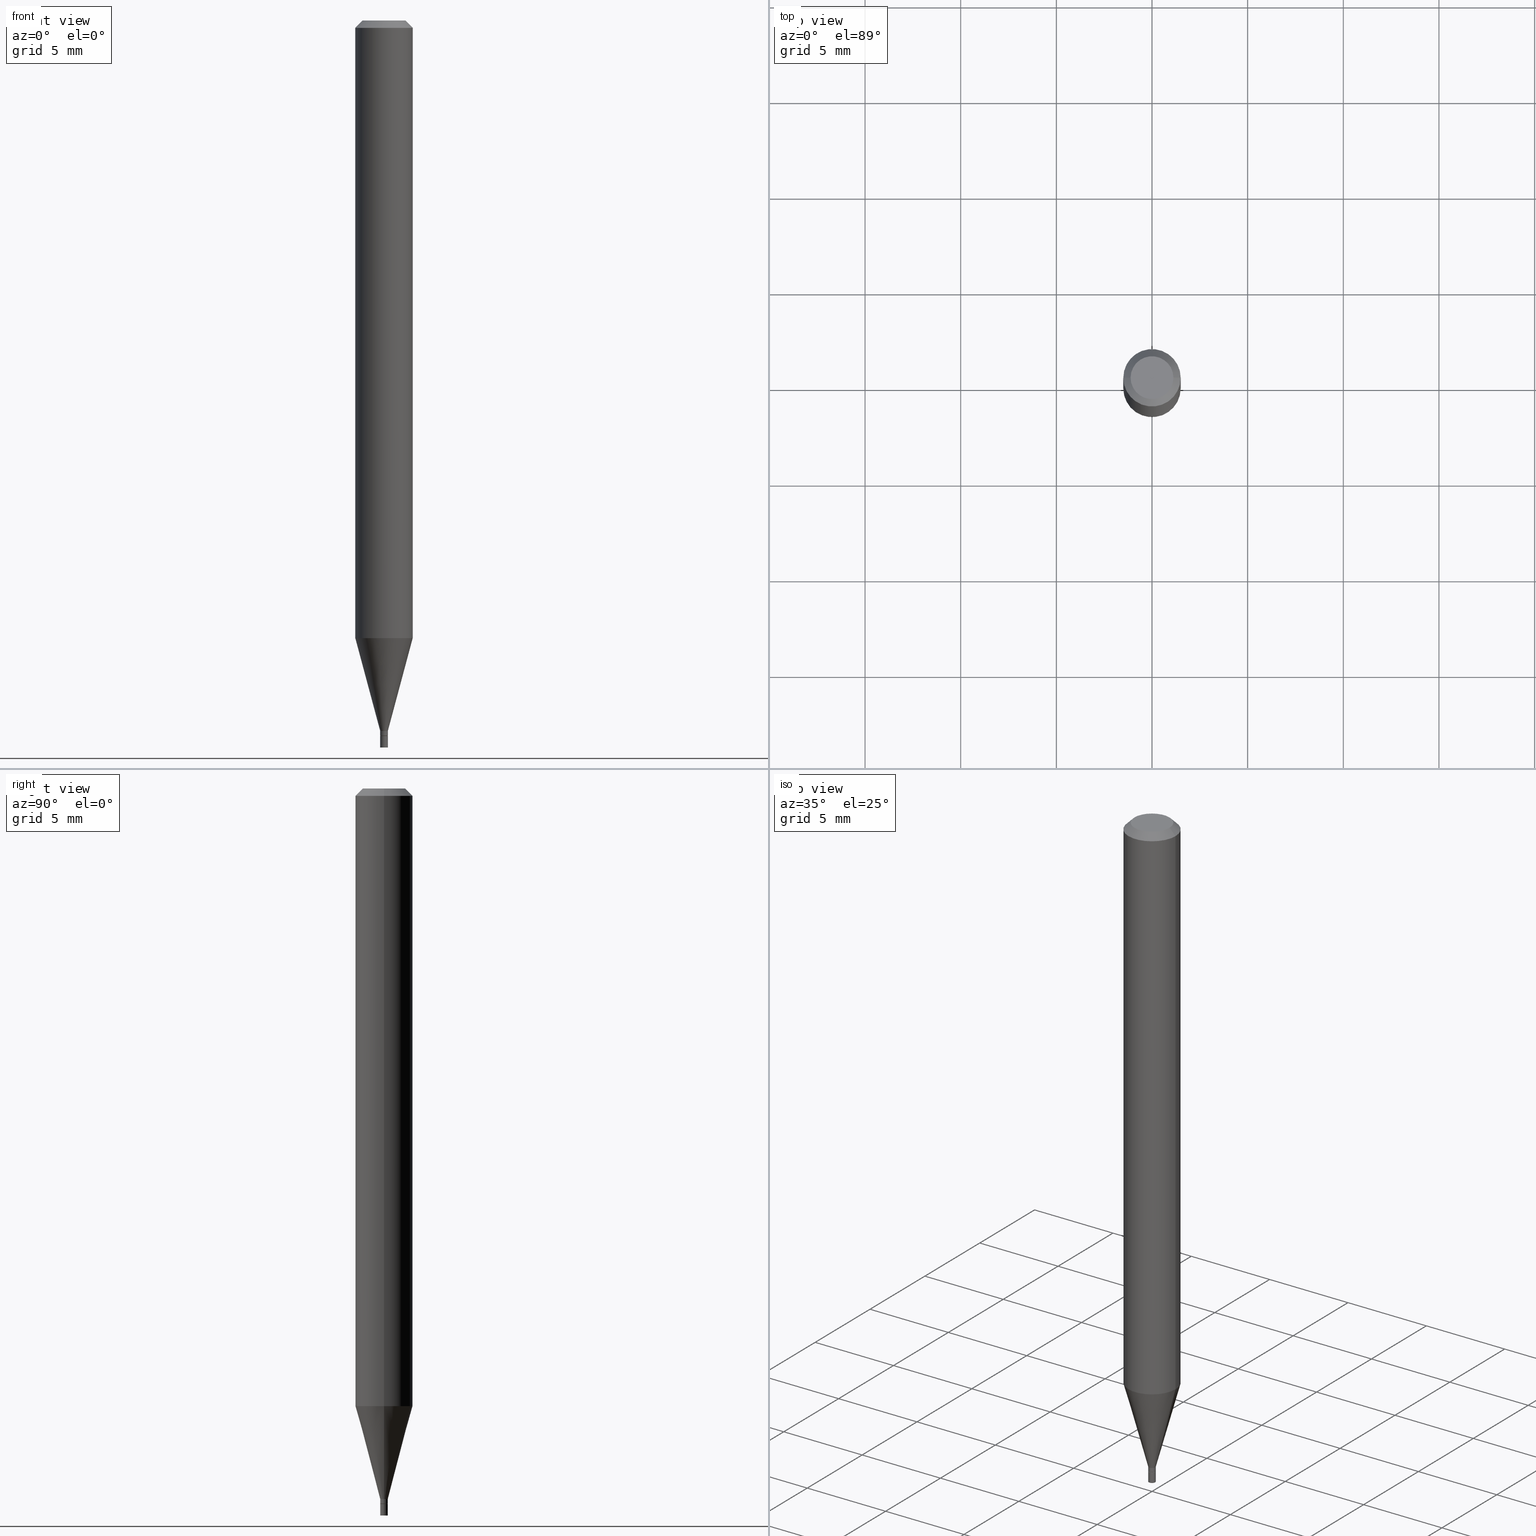
[diagram: canonical four-view strip — front | top / right | iso, engineering-drawing reading convention]
A machine part, canonical four-view strip (front | top / right | iso — engineering-drawing reading convention). The complete STEP part file that produces these views, byte-faithful:
ISO-10303-21;
HEADER;
FILE_DESCRIPTION (( 'STEP AP203' ),
    '1' );
FILE_NAME ('01803.STEP',
    '2024-03-20T01:24:29',
    ( '' ),
    ( '' ),
    'SwSTEP 2.0',
    'SolidWorks 2023',
    '' );
FILE_SCHEMA (( 'CONFIG_CONTROL_DESIGN' ));
ENDSEC;

DATA;
#1 = PLANE ( 'NONE',  #337 ) ;
#2 = ORIENTED_EDGE ( 'NONE', *, *, #420, .F. ) ;
#3 = AXIS2_PLACEMENT_3D ( 'NONE', #253, #224, #361 ) ;
#4 = CIRCLE ( 'NONE', #458, 0.05904999999999999832 ) ;
#5 = PERSON_AND_ORGANIZATION ( #349, #80 ) ;
#6 = EDGE_LOOP ( 'NONE', ( #176, #184, #239, #320 ) ) ;
#7 = PERSON_AND_ORGANIZATION ( #349, #80 ) ;
#8 = APPROVAL_ROLE ( '' ) ;
#9 = ADVANCED_FACE ( 'NONE', ( #267 ), #412, .T. ) ;
#10 = ORIENTED_EDGE ( 'NONE', *, *, #330, .F. ) ;
#11 = CARTESIAN_POINT ( 'NONE',  ( 3.075995059520799729E-16, 0.04404999999999999888, 7.721735782992738734E-17 ) ) ;
#12 = FACE_OUTER_BOUND ( 'NONE', #6, .T. ) ;
#13 = CALENDAR_DATE ( 2024, 19, 3 ) ;
#14 = CARTESIAN_POINT ( 'NONE',  ( 0.05904999999999998445, -4.850083061227587038E-15, -1.271018998652473808 ) ) ;
#15 = CARTESIAN_POINT ( 'NONE',  ( 3.600952817107613145E-29, -5.141206271446531536E-15, -1.472499999999999920 ) ) ;
#16 = ORIENTED_EDGE ( 'NONE', *, *, #204, .F. ) ;
#17 = ADVANCED_FACE ( 'NONE', ( #23 ), #164, .T. ) ;
#18 = CONICAL_SURFACE ( 'NONE', #3, 0.007849999999999919542, 0.2617993877991501295 ) ;
#19 = CIRCLE ( 'NONE', #87, 0.007849999999999999339 ) ;
#20 = PRODUCT_DEFINITION ( 'UNKNOWN', '', #49, #196 ) ;
#21 = CYLINDRICAL_SURFACE ( 'NONE', #456, 0.007849999999999999339 ) ;
#22 = ADVANCED_FACE ( 'NONE', ( #103 ), #278, .T. ) ;
#23 = FACE_OUTER_BOUND ( 'NONE', #38, .T. ) ;
#25 = PLANE ( 'NONE',  #250 ) ;
#24 = LOCAL_TIME ( 21, 24, 29.00000000000000000, #55 ) ;
#26 = FACE_OUTER_BOUND ( 'NONE', #51, .T. ) ;
#27 = CARTESIAN_POINT ( 'NONE',  ( -0.007849999999999921277, -5.083682926019942789E-15, -1.471999999999999975 ) ) ;
#28 = CARTESIAN_POINT ( 'NONE',  ( 3.668203209277705088E-31, -5.237222008264718399E-17, -0.01499999999999999944 ) ) ;
#29 = ORIENTED_EDGE ( 'NONE', *, *, #106, .T. ) ;
#30 = EDGE_CURVE ( 'NONE', #344, #192, #356, .T. ) ;
#31 = CYLINDRICAL_SURFACE ( 'NONE', #219, 0.05904999999999999832 ) ;
#32 = CIRCLE ( 'NONE', #345, 0.007349999999999998895 ) ;
#33 = FACE_OUTER_BOUND ( 'NONE', #373, .T. ) ;
#34 = AXIS2_PLACEMENT_3D ( 'NONE', #205, #69, #422 ) ;
#35 = ORIENTED_EDGE ( 'NONE', *, *, #377, .F. ) ;
#36 = DIRECTION ( 'NONE',  ( -2.445468806185136597E-29, 3.491481338843145583E-15, 1.000000000000000000 ) ) ;
#37 = DIRECTION ( 'NONE',  ( 1.000000000000000000, -6.982962677686261189E-15, 0.000000000000000000 ) ) ;
#38 = EDGE_LOOP ( 'NONE', ( #100, #79, #54, #309 ) ) ;
#39 = COORDINATED_UNIVERSAL_TIME_OFFSET ( 5, 0, .BEHIND. ) ;
#40 = EDGE_CURVE ( 'NONE', #293, #464, #143, .T. ) ;
#41 = CIRCLE ( 'NONE', #427, 0.007849999999999999339 ) ;
#42 = CONICAL_SURFACE ( 'NONE', #115, 0.007349999999999998895, 0.7853981633974718157 ) ;
#43 = PERSON_AND_ORGANIZATION ( #349, #80 ) ;
#44 = EDGE_CURVE ( 'NONE', #77, #110, #41, .T. ) ;
#45 = DATE_AND_TIME ( #13, #230 ) ;
#46 = CARTESIAN_POINT ( 'NONE',  ( 0.000000000000000000, 0.000000000000000000, 0.000000000000000000 ) ) ;
#47 = CONICAL_SURFACE ( 'NONE', #93, 0.05904999999999999832, 0.7853981633974330689 ) ;
#48 = DIRECTION ( 'NONE',  ( 0.000000000000000000, 0.000000000000000000, 1.000000000000000000 ) ) ;
#49 = PRODUCT_DEFINITION_FORMATION_WITH_SPECIFIED_SOURCE ( 'ANY', '', #261, .NOT_KNOWN. ) ;
#50 = CARTESIAN_POINT ( 'NONE',  ( 0.000000000000000000, 0.000000000000000000, 0.000000000000000000 ) ) ;
#51 = EDGE_LOOP ( 'NONE', ( #459, #324, #16, #118 ) ) ;
#52 = DIRECTION ( 'NONE',  ( -0.7071067811865642261, 7.493145998870414114E-15, 0.7071067811865309194 ) ) ;
#53 = CARTESIAN_POINT ( 'NONE',  ( 0.007849999999999999339, -5.278421488063067239E-15, -1.496099999999999985 ) ) ;
#54 = ORIENTED_EDGE ( 'NONE', *, *, #233, .T. ) ;
#55 = COORDINATED_UNIVERSAL_TIME_OFFSET ( 5, 0, .BEHIND. ) ;
#56 = CIRCLE ( 'NONE', #445, 0.007849999999999919542 ) ;
#57 = CIRCLE ( 'NONE', #443, 0.04404999999999999888 ) ;
#58 = CARTESIAN_POINT ( 'NONE',  ( 3.599730082704520905E-29, -5.139460530777110821E-15, -1.471999999999999975 ) ) ;
#59 = ADVANCED_FACE ( 'NONE', ( #388 ), #381, .T. ) ;
#60 = CARTESIAN_POINT ( 'NONE',  ( 0.007849999999999919542, -5.159711122542399474E-15, -1.462099999999999955 ) ) ;
#61 = DIRECTION ( 'NONE',  ( -2.445468806185136597E-29, 3.491481338843145583E-15, 1.000000000000000000 ) ) ;
#62 = ORIENTED_EDGE ( 'NONE', *, *, #313, .T. ) ;
#63 = LINE ( 'NONE', #65, #391 ) ;
#64 = CIRCLE ( 'NONE', #34, 0.007849999999999921277 ) ;
#65 = CARTESIAN_POINT ( 'NONE',  ( -0.007849999999999919542, 5.577760475716729290E-17, -3.861364045850061986E-31 ) ) ;
#66 = DIRECTION ( 'NONE',  ( 1.000000000000000000, -6.982962677686327453E-15, 0.000000000000000000 ) ) ;
#67 = CARTESIAN_POINT ( 'NONE',  ( 3.575519941523288144E-29, -5.104894865522562684E-15, -1.462099999999999955 ) ) ;
#68 = ORIENTED_EDGE ( 'NONE', *, *, #313, .F. ) ;
#69 = DIRECTION ( 'NONE',  ( -2.445468806185136597E-29, 3.491481338843145583E-15, 1.000000000000000000 ) ) ;
#70 = CARTESIAN_POINT ( 'NONE',  ( 0.000000000000000000, 0.000000000000000000, 0.000000000000000000 ) ) ;
#71 = ORIENTED_EDGE ( 'NONE', *, *, #368, .T. ) ;
#72 = ADVANCED_FACE ( 'NONE', ( #12 ), #76, .T. ) ;
#73 = FACE_OUTER_BOUND ( 'NONE', #225, .T. ) ;
#74 = DIRECTION ( 'NONE',  ( 1.000000000000000000, -6.982962677686327453E-15, 0.000000000000000000 ) ) ;
#75 = PERSON_AND_ORGANIZATION ( #349, #80 ) ;
#76 = CYLINDRICAL_SURFACE ( 'NONE', #271, 0.007849999999999919542 ) ;
#77 = VERTEX_POINT ( 'NONE', #178 ) ;
#78 = EDGE_CURVE ( 'NONE', #104, #418, #135, .T. ) ;
#79 = ORIENTED_EDGE ( 'NONE', *, *, #438, .T. ) ;
#80 = ORGANIZATION ( 'UNSPECIFIED', 'UNSPECIFIED', '' ) ;
#81 = APPLICATION_CONTEXT ( 'configuration controlled 3d designs of mechanical parts and assemblies' ) ;
#82 = PERSON_AND_ORGANIZATION ( #349, #80 ) ;
#83 = ORIENTED_EDGE ( 'NONE', *, *, #330, .T. ) ;
#84 = APPROVAL_DATE_TIME ( #247, #306 ) ;
#85 = AXIS2_PLACEMENT_3D ( 'NONE', #11, #254, #193 ) ;
#86 = ADVANCED_FACE ( 'NONE', ( #127 ), #18, .T. ) ;
#87 = AXIS2_PLACEMENT_3D ( 'NONE', #272, #240, #387 ) ;
#88 = FACE_OUTER_BOUND ( 'NONE', #355, .T. ) ;
#89 = CC_DESIGN_PERSON_AND_ORGANIZATION_ASSIGNMENT ( #7, #284, ( #49 ) ) ;
#90 = MANIFOLD_SOLID_BREP ( 'Body-Move/Copy2[1]', #416 ) ;
#91 = DIRECTION ( 'NONE',  ( -2.445468806185136597E-29, 3.491481338843145583E-15, 1.000000000000000000 ) ) ;
#92 = ADVANCED_FACE ( 'NONE', ( #121 ), #21, .T. ) ;
#93 = AXIS2_PLACEMENT_3D ( 'NONE', #333, #161, #223 ) ;
#94 = ORIENTED_EDGE ( 'NONE', *, *, #260, .F. ) ;
#95 = ORIENTED_EDGE ( 'NONE', *, *, #218, .F. ) ;
#96 = DIRECTION ( 'NONE',  ( -2.445468806185136597E-29, 3.491481338843145583E-15, 1.000000000000000000 ) ) ;
#97 = DIRECTION ( 'NONE',  ( 2.438088387897960049E-29, -3.491481338843145188E-15, -1.000000000000000000 ) ) ;
#98 = DIRECTION ( 'NONE',  ( 1.000000000000000000, -6.982962677686273021E-15, 0.000000000000000000 ) ) ;
#99 = AXIS2_PLACEMENT_3D ( 'NONE', #46, #48, #322 ) ;
#100 = ORIENTED_EDGE ( 'NONE', *, *, #295, .F. ) ;
#101 = CARTESIAN_POINT ( 'NONE',  ( -1.129890276342019696E-44, 1.613183862664992778E-30, 4.620342216119358569E-16 ) ) ;
#102 = CC_DESIGN_PERSON_AND_ORGANIZATION_ASSIGNMENT ( #181, #362, ( #261 ) ) ;
#103 = FACE_OUTER_BOUND ( 'NONE', #428, .T. ) ;
#104 = VERTEX_POINT ( 'NONE', #409 ) ;
#105 = DIRECTION ( 'NONE',  ( 1.000000000000000000, -6.982962677686261189E-15, 0.000000000000000000 ) ) ;
#106 = EDGE_CURVE ( 'NONE', #264, #299, #229, .T. ) ;
#107 = DIRECTION ( 'NONE',  ( -2.445468806185136597E-29, 3.491481338843145583E-15, 1.000000000000000000 ) ) ;
#108 = CIRCLE ( 'NONE', #189, 0.05904999999999999832 ) ;
#109 = APPROVAL_ROLE ( '' ) ;
#110 = VERTEX_POINT ( 'NONE', #323 ) ;
#111 = EDGE_LOOP ( 'NONE', ( #35, #426 ) ) ;
#112 = MECHANICAL_CONTEXT ( 'NONE', #81, 'mechanical' ) ;
#113 = ORIENTED_EDGE ( 'NONE', *, *, #398, .F. ) ;
#114 = AXIS2_PLACEMENT_3D ( 'NONE', #174, #302, #450 ) ;
#115 = AXIS2_PLACEMENT_3D ( 'NONE', #213, #466, #347 ) ;
#116 = CALENDAR_DATE ( 2024, 19, 3 ) ;
#117 = APPROVAL ( #155, 'UNSPECIFIED' ) ;
#118 = ORIENTED_EDGE ( 'NONE', *, *, #275, .F. ) ;
#119 = APPLICATION_PROTOCOL_DEFINITION ( 'international standard', 'config_control_design', 1994, #269 ) ;
#120 = CYLINDRICAL_SURFACE ( 'NONE', #158, 0.05904999999999999832 ) ;
#121 = FACE_OUTER_BOUND ( 'NONE', #461, .T. ) ;
#122 = LINE ( 'NONE', #314, #290 ) ;
#123 = SECURITY_CLASSIFICATION ( '', '', #360 ) ;
#124 = CARTESIAN_POINT ( 'NONE',  ( 0.05904999999999999832, -4.123439461173740327E-16, 2.879382386107500220E-30 ) ) ;
#125 = DIRECTION ( 'NONE',  ( 1.000000000000000000, -6.982962677686265922E-15, 4.819687581474398999E-29 ) ) ;
#126 = APPROVAL_ROLE ( '' ) ;
#127 = FACE_OUTER_BOUND ( 'NONE', #331, .T. ) ;
#128 = MANIFOLD_SOLID_BREP ( 'Body-Move/Copy2[2]', #152 ) ;
#129 = CIRCLE ( 'NONE', #160, 0.007849999999999999339 ) ;
#130 = DIRECTION ( 'NONE',  ( 1.000000000000000000, -6.982962677686266711E-15, 4.876176775795936353E-29 ) ) ;
#131 = DIRECTION ( 'NONE',  ( 2.445468806185136597E-29, -3.491481338843145583E-15, -1.000000000000000000 ) ) ;
#132 = ADVANCED_FACE ( 'NONE', ( #88 ), #326, .F. ) ;
#133 = CARTESIAN_POINT ( 'NONE',  ( 3.600952817107613145E-29, -5.141206271446531536E-15, -1.472499999999999920 ) ) ;
#134 = DIRECTION ( 'NONE',  ( 0.2588190451025214611, 1.565188264969621573E-15, 0.9659258262890682012 ) ) ;
#135 = CIRCLE ( 'NONE', #411, 0.04404999999999999888 ) ;
#136 = VECTOR ( 'NONE', #343, 39.37007874015748143 ) ;
#137 = DIRECTION ( 'NONE',  ( 1.000000000000000000, -6.982962677686327453E-15, 0.000000000000000000 ) ) ;
#138 = CARTESIAN_POINT ( 'NONE',  ( -0.05904999999999999832, 3.599717260347268549E-16, -0.01499999999999999944 ) ) ;
#139 = DIRECTION ( 'NONE',  ( -1.000000000000000000, 6.982962677686266711E-15, 0.000000000000000000 ) ) ;
#140 = DIRECTION ( 'NONE',  ( -2.445468806185136877E-29, 3.491481338843145188E-15, 1.000000000000000000 ) ) ;
#141 = VERTEX_POINT ( 'NONE', #154 ) ;
#142 = CARTESIAN_POINT ( 'NONE',  ( 3.600952817107613145E-29, -5.141206271446531536E-15, -1.472499999999999920 ) ) ;
#143 = LINE ( 'NONE', #455, #235 ) ;
#144 = CIRCLE ( 'NONE', #200, 0.007849999999999921277 ) ;
#145 = LOCAL_TIME ( 21, 24, 29.00000000000000000, #185 ) ;
#146 = ORIENTED_EDGE ( 'NONE', *, *, #346, .F. ) ;
#147 = CARTESIAN_POINT ( 'NONE',  ( 0.007849999999999921277, -5.194276787796946822E-15, -1.471999999999999975 ) ) ;
#148 = DIRECTION ( 'NONE',  ( -2.445468806185136597E-29, 3.491481338843145583E-15, 1.000000000000000000 ) ) ;
#149 =( LENGTH_UNIT ( ) NAMED_UNIT ( * ) SI_UNIT ( $, .METRE. ) );
#150 = PERSON_AND_ORGANIZATION ( #349, #80 ) ;
#151 = CARTESIAN_POINT ( 'NONE',  ( -1.129890276342019696E-44, 1.613183862664992778E-30, 4.620342216119358569E-16 ) ) ;
#152 = CLOSED_SHELL ( 'NONE', ( #72, #357, #22, #429, #86, #17, #159, #263, #132, #156, #385, #59 ) ) ;
#153 = AXIS2_PLACEMENT_3D ( 'NONE', #304, #242, #382 ) ;
#154 = CARTESIAN_POINT ( 'NONE',  ( 0.05904999999999999832, -4.647161662000212105E-16, -0.01499999999999999944 ) ) ;
#155 = APPROVAL_STATUS ( 'not_yet_approved' ) ;
#156 = ADVANCED_FACE ( 'NONE', ( #405 ), #288, .F. ) ;
#157 = ORIENTED_EDGE ( 'NONE', *, *, #453, .F. ) ;
#158 = AXIS2_PLACEMENT_3D ( 'NONE', #50, #191, #329 ) ;
#159 = ADVANCED_FACE ( 'NONE', ( #364 ), #120, .T. ) ;
#160 = AXIS2_PLACEMENT_3D ( 'NONE', #142, #96, #66 ) ;
#161 = DIRECTION ( 'NONE',  ( 2.445468806185136597E-29, -3.491481338843145583E-15, -1.000000000000000000 ) ) ;
#162 = CC_DESIGN_PERSON_AND_ORGANIZATION_ASSIGNMENT ( #150, #394, ( #49 ) ) ;
#163 = ADVANCED_BREP_SHAPE_REPRESENTATION ( '01803', ( #90, #128, #99 ), #434 ) ;
#164 = CONICAL_SURFACE ( 'NONE', #114, 0.007849999999999919542, 0.2617993877991501295 ) ;
#165 = ORIENTED_EDGE ( 'NONE', *, *, #44, .T. ) ;
#166 = CARTESIAN_POINT ( 'NONE',  ( 0.007349999999999998895, -5.192531047127525319E-15, -1.472499999999999920 ) ) ;
#167 = ORIENTED_EDGE ( 'NONE', *, *, #78, .F. ) ;
#168 = CARTESIAN_POINT ( 'NONE',  ( -0.05904999999999999832, -1.825480182130091092E-15, -0.01499999999999999944 ) ) ;
#169 = VERTEX_POINT ( 'NONE', #14 ) ;
#170 = CARTESIAN_POINT ( 'NONE',  ( 0.000000000000000000, 0.000000000000000000, 0.000000000000000000 ) ) ;
#171 = CC_DESIGN_APPROVAL ( #306, ( #20 ) ) ;
#172 = ORIENTED_EDGE ( 'NONE', *, *, #420, .T. ) ;
#173 = DIRECTION ( 'NONE',  ( -0.2588190451025214611, 5.211531920934551042E-15, 0.9659258262890682012 ) ) ;
#174 = CARTESIAN_POINT ( 'NONE',  ( 3.575519941523288144E-29, -5.104894865522562684E-15, -1.462099999999999955 ) ) ;
#175 = DIRECTION ( 'NONE',  ( -2.445468806185136877E-29, 3.491481338843145188E-15, 1.000000000000000000 ) ) ;
#176 = ORIENTED_EDGE ( 'NONE', *, *, #218, .T. ) ;
#177 = PERSON_AND_ORGANIZATION_ROLE ( 'classification_officer' ) ;
#178 = CARTESIAN_POINT ( 'NONE',  ( 0.007849999999999999339, -5.196022528466369115E-15, -1.472499999999999920 ) ) ;
#179 = AXIS2_PLACEMENT_3D ( 'NONE', #15, #437, #442 ) ;
#180 = ORIENTED_EDGE ( 'NONE', *, *, #106, .F. ) ;
#181 = PERSON_AND_ORGANIZATION ( #349, #80 ) ;
#182 = EDGE_CURVE ( 'NONE', #464, #248, #122, .T. ) ;
#183 = CARTESIAN_POINT ( 'NONE',  ( -0.007349999999999998895, -5.088981380368163613E-15, -1.472499999999999920 ) ) ;
#184 = ORIENTED_EDGE ( 'NONE', *, *, #404, .T. ) ;
#185 = COORDINATED_UNIVERSAL_TIME_OFFSET ( 5, 0, .BEHIND. ) ;
#186 = ADVANCED_FACE ( 'NONE', ( #33 ), #1, .F. ) ;
#187 = ORIENTED_EDGE ( 'NONE', *, *, #377, .T. ) ;
#188 = AXIS2_PLACEMENT_3D ( 'NONE', #70, #209, #406 ) ;
#189 = AXIS2_PLACEMENT_3D ( 'NONE', #414, #268, #98 ) ;
#190 = LENGTH_MEASURE_WITH_UNIT ( LENGTH_MEASURE( 0.02539999999999999897 ), #149 );
#191 = DIRECTION ( 'NONE',  ( -2.445468806185136597E-29, 3.491481338843145583E-15, 1.000000000000000000 ) ) ;
#192 = VERTEX_POINT ( 'NONE', #53 ) ;
#193 = DIRECTION ( 'NONE',  ( -1.000000000000000000, 6.982962677686265922E-15, -4.876176775795935793E-29 ) ) ;
#194 = AXIS2_PLACEMENT_3D ( 'NONE', #350, #107, #312 ) ;
#195 = CARTESIAN_POINT ( 'NONE',  ( 3.668203209277705088E-31, -5.237222008264718399E-17, -0.01499999999999999944 ) ) ;
#196 = DESIGN_CONTEXT ( 'detailed design', #269, 'design' ) ;
#197 = DIRECTION ( 'NONE',  ( -2.445468806185136597E-29, 3.491481338843145583E-15, 1.000000000000000000 ) ) ;
#198 = CARTESIAN_POINT ( 'NONE',  ( -0.007849999999999919542, -4.533640445204635216E-15, -1.462099999999999955 ) ) ;
#199 = CARTESIAN_POINT ( 'NONE',  ( -0.05904999999999999832, 4.195754854663391478E-16, -2.904631170795521892E-30 ) ) ;
#200 = AXIS2_PLACEMENT_3D ( 'NONE', #58, #197, #228 ) ;
#201 = CARTESIAN_POINT ( 'NONE',  ( 0.04404999999999999888, -3.798447818264452683E-16, 4.620342216119383221E-16 ) ) ;
#202 = VECTOR ( 'NONE', #140, 39.37007874015748143 ) ;
#203 = LINE ( 'NONE', #138, #372 ) ;
#204 = EDGE_CURVE ( 'NONE', #141, #315, #441, .T. ) ;
#205 = CARTESIAN_POINT ( 'NONE',  ( 3.599730082704520905E-29, -5.139460530777110821E-15, -1.471999999999999975 ) ) ;
#206 = DIRECTION ( 'NONE',  ( -2.445468806185136597E-29, 3.491481338843145583E-15, 1.000000000000000000 ) ) ;
#207 = DIRECTION ( 'NONE',  ( -2.445468806185136597E-29, 3.491481338843145583E-15, 1.000000000000000000 ) ) ;
#208 = VECTOR ( 'NONE', #173, 39.37007874015747433 ) ;
#209 = DIRECTION ( 'NONE',  ( -2.445468806185136597E-29, 3.491481338843145583E-15, 1.000000000000000000 ) ) ;
#210 = ORIENTED_EDGE ( 'NONE', *, *, #40, .F. ) ;
#211 = DIRECTION ( 'NONE',  ( -2.445468806185136877E-29, 3.491481338843145188E-15, 1.000000000000000000 ) ) ;
#212 = APPROVAL ( #369, 'UNSPECIFIED' ) ;
#213 = CARTESIAN_POINT ( 'NONE',  ( 3.600952817107613145E-29, -5.141206271446531536E-15, -1.472499999999999920 ) ) ;
#214 = ORIENTED_EDGE ( 'NONE', *, *, #453, .T. ) ;
#215 = DATE_AND_TIME ( #325, #145 ) ;
#216 = CARTESIAN_POINT ( 'NONE',  ( 0.007849999999999919542, -5.159711122542399474E-15, -1.462099999999999955 ) ) ;
#217 = CARTESIAN_POINT ( 'NONE',  ( 0.000000000000000000, 0.000000000000000000, 0.000000000000000000 ) ) ;
#218 = EDGE_CURVE ( 'NONE', #464, #299, #144, .T. ) ;
#219 = AXIS2_PLACEMENT_3D ( 'NONE', #170, #36, #130 ) ;
#220 = DATE_TIME_ROLE ( 'creation_date' ) ;
#221 = EDGE_CURVE ( 'NONE', #418, #141, #291, .T. ) ;
#222 = CALENDAR_DATE ( 2024, 19, 3 ) ;
#223 = DIRECTION ( 'NONE',  ( -1.000000000000000000, 6.982962677686266711E-15, 0.000000000000000000 ) ) ;
#224 = DIRECTION ( 'NONE',  ( -2.445468806185136597E-29, 3.491481338843145583E-15, 1.000000000000000000 ) ) ;
#225 = EDGE_LOOP ( 'NONE', ( #180, #266, #439, #68 ) ) ;
#226 = CARTESIAN_POINT ( 'NONE',  ( -0.007349999999999998895, -5.086332153194053990E-15, -1.472499999999999920 ) ) ;
#227 = APPROVAL_PERSON_ORGANIZATION ( #43, #117, #109 ) ;
#228 = DIRECTION ( 'NONE',  ( 1.000000000000000000, -6.982962677686273021E-15, 0.000000000000000000 ) ) ;
#229 = LINE ( 'NONE', #183, #378 ) ;
#230 = LOCAL_TIME ( 21, 24, 29.00000000000000000, #328 ) ;
#231 = CARTESIAN_POINT ( 'NONE',  ( 0.000000000000000000, 0.000000000000000000, 0.000000000000000000 ) ) ;
#232 = CC_DESIGN_DATE_AND_TIME_ASSIGNMENT ( #45, #220, ( #20 ) ) ;
#233 = EDGE_CURVE ( 'NONE', #248, #169, #352, .T. ) ;
#234 = DIRECTION ( 'NONE',  ( 1.000000000000000000, -6.982962677686273021E-15, 0.000000000000000000 ) ) ;
#235 = VECTOR ( 'NONE', #415, 39.37007874015748143 ) ;
#236 = CARTESIAN_POINT ( 'NONE',  ( 3.575519941523288144E-29, -5.104894865522562684E-15, -1.462099999999999955 ) ) ;
#237 = ADVANCED_FACE ( 'NONE', ( #374 ), #25, .F. ) ;
#238 = CARTESIAN_POINT ( 'NONE',  ( 3.600952817107613145E-29, -5.141206271446531536E-15, -1.472499999999999920 ) ) ;
#239 = ORIENTED_EDGE ( 'NONE', *, *, #251, .F. ) ;
#240 = DIRECTION ( 'NONE',  ( -2.445468806185136597E-29, 3.491481338843145583E-15, 1.000000000000000000 ) ) ;
#241 = CARTESIAN_POINT ( 'NONE',  ( -0.007849999999999919542, -5.049117260765395441E-15, -1.462099999999999955 ) ) ;
#242 = DIRECTION ( 'NONE',  ( -2.445468806185136597E-29, 3.491481338843145583E-15, 1.000000000000000000 ) ) ;
#243 = CC_DESIGN_APPROVAL ( #117, ( #49 ) ) ;
#244 = DIRECTION ( 'NONE',  ( -2.445468806185136597E-29, 3.491481338843145583E-15, 1.000000000000000000 ) ) ;
#245 = APPROVAL_DATE_TIME ( #358, #117 ) ;
#246 = ORIENTED_EDGE ( 'NONE', *, *, #346, .T. ) ;
#247 = DATE_AND_TIME ( #116, #307 ) ;
#248 = VERTEX_POINT ( 'NONE', #60 ) ;
#249 = DIRECTION ( 'NONE',  ( 1.000000000000000000, -6.982962677686267499E-15, 4.876176775795936353E-29 ) ) ;
#250 = AXIS2_PLACEMENT_3D ( 'NONE', #338, #300, #342 ) ;
#251 = EDGE_CURVE ( 'NONE', #248, #257, #56, .T. ) ;
#252 = EDGE_LOOP ( 'NONE', ( #436, #62, #389, #340 ) ) ;
#253 = CARTESIAN_POINT ( 'NONE',  ( 3.575519941523288144E-29, -5.104894865522562684E-15, -1.462099999999999955 ) ) ;
#254 = DIRECTION ( 'NONE',  ( 2.438088387897960049E-29, -3.491481338843145188E-15, -1.000000000000000000 ) ) ;
#255 = PRODUCT_RELATED_PRODUCT_CATEGORY ( 'detail', '', ( #261 ) ) ;
#256 = DIRECTION ( 'NONE',  ( 1.000000000000000000, -6.982962677686266711E-15, 0.000000000000000000 ) ) ;
#257 = VERTEX_POINT ( 'NONE', #198 ) ;
#258 = VECTOR ( 'NONE', #134, 39.37007874015747433 ) ;
#259 = AXIS2_PLACEMENT_3D ( 'NONE', #236, #460, #380 ) ;
#260 = EDGE_CURVE ( 'NONE', #296, #315, #375, .T. ) ;
#261 = PRODUCT ( '01803', '01803', '', ( #112 ) ) ;
#262 = DIRECTION ( 'NONE',  ( 1.000000000000000000, -6.982962677686265922E-15, 4.876176775795935793E-29 ) ) ;
#263 = ADVANCED_FACE ( 'NONE', ( #465 ), #47, .T. ) ;
#264 = VERTEX_POINT ( 'NONE', #226 ) ;
#265 = DATE_AND_TIME ( #292, #24 ) ;
#266 = ORIENTED_EDGE ( 'NONE', *, *, #283, .T. ) ;
#267 = FACE_OUTER_BOUND ( 'NONE', #289, .T. ) ;
#268 = DIRECTION ( 'NONE',  ( -2.445468806185136597E-29, 3.491481338843145583E-15, 1.000000000000000000 ) ) ;
#269 = APPLICATION_CONTEXT ( 'configuration controlled 3d designs of mechanical parts and assemblies' ) ;
#270 = ORIENTED_EDGE ( 'NONE', *, *, #363, .F. ) ;
#271 = AXIS2_PLACEMENT_3D ( 'NONE', #217, #354, #249 ) ;
#272 = CARTESIAN_POINT ( 'NONE',  ( 3.658665880933582389E-29, -5.223605231043229660E-15, -1.496099999999999985 ) ) ;
#273 = CARTESIAN_POINT ( 'NONE',  ( 3.108237313273292970E-29, -4.437739115110212907E-15, -1.271018998652473808 ) ) ;
#274 = DIRECTION ( 'NONE',  ( -2.445468806185136597E-29, 3.491481338843145583E-15, 1.000000000000000000 ) ) ;
#275 = EDGE_CURVE ( 'NONE', #169, #141, #395, .T. ) ;
#276 = EDGE_LOOP ( 'NONE', ( #94, #431, #451, #407 ) ) ;
#277 = CARTESIAN_POINT ( 'NONE',  ( -0.05904999999999998445, -4.018163629643874203E-15, -1.271018998652473808 ) ) ;
#278 = CONICAL_SURFACE ( 'NONE', #316, 0.05904999999999999832, 0.7853981633974330689 ) ;
#279 = CC_DESIGN_SECURITY_CLASSIFICATION ( #123, ( #49 ) ) ;
#280 = ORIENTED_EDGE ( 'NONE', *, *, #204, .T. ) ;
#281 = DIRECTION ( 'NONE',  ( -0.7071067811865368036, 2.468850131082143859E-15, -0.7071067811865583419 ) ) ;
#282 =( CONVERSION_BASED_UNIT ( 'INCH', #190 ) LENGTH_UNIT ( ) NAMED_UNIT ( #408 ) );
#283 = EDGE_CURVE ( 'NONE', #264, #293, #32, .T. ) ;
#284 = PERSON_AND_ORGANIZATION_ROLE ( 'design_supplier' ) ;
#285 = VECTOR ( 'NONE', #211, 39.37007874015748143 ) ;
#286 = AXIS2_PLACEMENT_3D ( 'NONE', #449, #392, #37 ) ;
#287 = APPLICATION_PROTOCOL_DEFINITION ( 'international standard', 'config_control_design', 1994, #81 ) ;
#288 = PLANE ( 'NONE',  #179 ) ;
#289 = EDGE_LOOP ( 'NONE', ( #83, #172, #448, #146 ) ) ;
#290 = VECTOR ( 'NONE', #457, 39.37007874015748143 ) ;
#291 = LINE ( 'NONE', #332, #327 ) ;
#292 = CALENDAR_DATE ( 2024, 19, 3 ) ;
#293 = VERTEX_POINT ( 'NONE', #166 ) ;
#294 = DIRECTION ( 'NONE',  ( -2.445468806185136597E-29, 3.491481338843145583E-15, 1.000000000000000000 ) ) ;
#295 = EDGE_CURVE ( 'NONE', #257, #296, #462, .T. ) ;
#296 = VERTEX_POINT ( 'NONE', #277 ) ;
#297 = CARTESIAN_POINT ( 'NONE',  ( 0.000000000000000000, 0.000000000000000000, 0.000000000000000000 ) ) ;
#298 = CIRCLE ( 'NONE', #153, 0.007349999999999998895 ) ;
#299 = VERTEX_POINT ( 'NONE', #27 ) ;
#300 = DIRECTION ( 'NONE',  ( -2.438088387897960049E-29, 3.491481338843145188E-15, 1.000000000000000000 ) ) ;
#301 = LINE ( 'NONE', #310, #202 ) ;
#302 = DIRECTION ( 'NONE',  ( -2.445468806185136597E-29, 3.491481338843145583E-15, 1.000000000000000000 ) ) ;
#303 = ORIENTED_EDGE ( 'NONE', *, *, #295, .T. ) ;
#304 = CARTESIAN_POINT ( 'NONE',  ( 3.600952817107613145E-29, -5.141206271446531536E-15, -1.472499999999999920 ) ) ;
#305 = ORIENTED_EDGE ( 'NONE', *, *, #251, .T. ) ;
#306 = APPROVAL ( #403, 'UNSPECIFIED' ) ;
#307 = LOCAL_TIME ( 21, 24, 29.00000000000000000, #317 ) ;
#308 = DIRECTION ( 'NONE',  ( 1.000000000000000000, -6.982962677686265922E-15, 4.819687581474398999E-29 ) ) ;
#309 = ORIENTED_EDGE ( 'NONE', *, *, #401, .F. ) ;
#310 = CARTESIAN_POINT ( 'NONE',  ( 0.007849999999999999339, -5.481625701983718421E-17, 3.827798768999809240E-31 ) ) ;
#311 = ORIENTED_EDGE ( 'NONE', *, *, #78, .T. ) ;
#312 = DIRECTION ( 'NONE',  ( 1.000000000000000000, -6.982962677686266711E-15, 0.000000000000000000 ) ) ;
#313 = EDGE_CURVE ( 'NONE', #299, #464, #64, .T. ) ;
#314 = CARTESIAN_POINT ( 'NONE',  ( 0.007849999999999919542, -5.481625701983663571E-17, 3.827798768999770704E-31 ) ) ;
#315 = VERTEX_POINT ( 'NONE', #168 ) ;
#316 = AXIS2_PLACEMENT_3D ( 'NONE', #28, #131, #139 ) ;
#317 = COORDINATED_UNIVERSAL_TIME_OFFSET ( 5, 0, .BEHIND. ) ;
#318 = CIRCLE ( 'NONE', #259, 0.007849999999999919542 ) ;
#319 = CIRCLE ( 'NONE', #194, 0.05904999999999999832 ) ;
#320 = ORIENTED_EDGE ( 'NONE', *, *, #182, .F. ) ;
#321 =( NAMED_UNIT ( * ) PLANE_ANGLE_UNIT ( ) SI_UNIT ( $, .RADIAN. ) );
#322 = DIRECTION ( 'NONE',  ( 1.000000000000000000, 0.000000000000000000, 0.000000000000000000 ) ) ;
#323 = CARTESIAN_POINT ( 'NONE',  ( -0.007849999999999999339, -5.126628146487712566E-15, -1.472499999999999920 ) ) ;
#324 = ORIENTED_EDGE ( 'NONE', *, *, #260, .T. ) ;
#325 = CALENDAR_DATE ( 2024, 19, 3 ) ;
#326 = PLANE ( 'NONE',  #85 ) ;
#327 = VECTOR ( 'NONE', #410, 39.37007874015748143 ) ;
#328 = COORDINATED_UNIVERSAL_TIME_OFFSET ( 5, 0, .BEHIND. ) ;
#329 = DIRECTION ( 'NONE',  ( 1.000000000000000000, -6.982962677686266711E-15, 4.876176775795936353E-29 ) ) ;
#330 = EDGE_CURVE ( 'NONE', #192, #344, #19, .T. ) ;
#331 = EDGE_LOOP ( 'NONE', ( #305, #303, #444, #402 ) ) ;
#332 = CARTESIAN_POINT ( 'NONE',  ( 0.05904999999999999832, -4.574846268510561447E-16, -0.01499999999999999944 ) ) ;
#333 = CARTESIAN_POINT ( 'NONE',  ( 3.668203209277705088E-31, -5.237222008264718399E-17, -0.01499999999999999944 ) ) ;
#334 = SHAPE_DEFINITION_REPRESENTATION ( #440, #163 ) ;
#335 = UNCERTAINTY_MEASURE_WITH_UNIT (LENGTH_MEASURE( 1.000000000000000082E-05 ), #282, 'distance_accuracy_value', 'NONE');
#336 = DIRECTION ( 'NONE',  ( 1.000000000000000000, -6.982962677686265922E-15, 4.876176775795935793E-29 ) ) ;
#337 = AXIS2_PLACEMENT_3D ( 'NONE', #384, #97, #367 ) ;
#338 = CARTESIAN_POINT ( 'NONE',  ( 3.577647911566500614E-29, -5.339627574433336753E-15, -1.496099999999999985 ) ) ;
#339 = CARTESIAN_POINT ( 'NONE',  ( -0.007849999999999999339, 5.577760475716785990E-17, -3.861364045850100522E-31 ) ) ;
#340 = ORIENTED_EDGE ( 'NONE', *, *, #438, .F. ) ;
#341 = LINE ( 'NONE', #339, #136 ) ;
#342 = DIRECTION ( 'NONE',  ( 1.000000000000000000, -6.982962677686265922E-15, 4.876176775795935793E-29 ) ) ;
#343 = DIRECTION ( 'NONE',  ( -2.445468806185136877E-29, 3.491481338843145188E-15, 1.000000000000000000 ) ) ;
#344 = VERTEX_POINT ( 'NONE', #376 ) ;
#345 = AXIS2_PLACEMENT_3D ( 'NONE', #133, #419, #105 ) ;
#346 = EDGE_CURVE ( 'NONE', #192, #77, #301, .T. ) ;
#347 = DIRECTION ( 'NONE',  ( 1.000000000000000000, -6.982962677686261189E-15, 0.000000000000000000 ) ) ;
#348 = ORIENTED_EDGE ( 'NONE', *, *, #30, .F. ) ;
#349 = PERSON ( 'UNSPECIFIED', 'UNSPECIFIED', 'UNSPECIFIED', ('UNSPECIFIED'), ('UNSPECIFIED'), ('UNSPECIFIED') ) ;
#350 = CARTESIAN_POINT ( 'NONE',  ( 3.668203209277705088E-31, -5.237222008264718399E-17, -0.01499999999999999944 ) ) ;
#351 = EDGE_LOOP ( 'NONE', ( #187, #29, #95, #210 ) ) ;
#352 = LINE ( 'NONE', #216, #258 ) ;
#353 = DATE_TIME_ROLE ( 'classification_date' ) ;
#354 = DIRECTION ( 'NONE',  ( -2.445468806185136597E-29, 3.491481338843145583E-15, 1.000000000000000000 ) ) ;
#355 = EDGE_LOOP ( 'NONE', ( #311, #386 ) ) ;
#356 = CIRCLE ( 'NONE', #390, 0.007849999999999999339 ) ;
#357 = ADVANCED_FACE ( 'NONE', ( #424 ), #417, .T. ) ;
#358 = DATE_AND_TIME ( #222, #447 ) ;
#359 = EDGE_LOOP ( 'NONE', ( #396, #167, #214, #71 ) ) ;
#360 = SECURITY_CLASSIFICATION_LEVEL ( 'unclassified' ) ;
#361 = DIRECTION ( 'NONE',  ( 1.000000000000000000, -6.982962677686274599E-15, 0.000000000000000000 ) ) ;
#362 = PERSON_AND_ORGANIZATION_ROLE ( 'design_owner' ) ;
#363 = EDGE_CURVE ( 'NONE', #418, #104, #57, .T. ) ;
#364 = FACE_OUTER_BOUND ( 'NONE', #276, .T. ) ;
#365 = APPROVAL_PERSON_ORGANIZATION ( #5, #212, #126 ) ;
#366 = APPROVAL_DATE_TIME ( #265, #212 ) ;
#367 = DIRECTION ( 'NONE',  ( -1.000000000000000000, 6.982962677686265922E-15, -4.876176775795935793E-29 ) ) ;
#368 = EDGE_CURVE ( 'NONE', #315, #141, #319, .T. ) ;
#369 = APPROVAL_STATUS ( 'not_yet_approved' ) ;
#370 = VECTOR ( 'NONE', #175, 39.37007874015748143 ) ;
#371 = ORIENTED_EDGE ( 'NONE', *, *, #398, .T. ) ;
#372 = VECTOR ( 'NONE', #281, 39.37007874015748143 ) ;
#373 = EDGE_LOOP ( 'NONE', ( #165, #371 ) ) ;
#374 = FACE_OUTER_BOUND ( 'NONE', #421, .T. ) ;
#375 = LINE ( 'NONE', #199, #285 ) ;
#376 = CARTESIAN_POINT ( 'NONE',  ( -0.007849999999999999339, -5.126628146487712566E-15, -1.496099999999999985 ) ) ;
#377 = EDGE_CURVE ( 'NONE', #293, #264, #298, .T. ) ;
#378 = VECTOR ( 'NONE', #52, 39.37007874015748143 ) ;
#379 = CC_DESIGN_APPROVAL ( #212, ( #123 ) ) ;
#380 = DIRECTION ( 'NONE',  ( 1.000000000000000000, -6.982962677686274599E-15, 0.000000000000000000 ) ) ;
#381 = CYLINDRICAL_SURFACE ( 'NONE', #188, 0.007849999999999919542 ) ;
#382 = DIRECTION ( 'NONE',  ( 1.000000000000000000, -6.982962677686261189E-15, 0.000000000000000000 ) ) ;
#383 = DIRECTION ( 'NONE',  ( -2.445468806185136597E-29, 3.491481338843145583E-15, 1.000000000000000000 ) ) ;
#384 = CARTESIAN_POINT ( 'NONE',  ( 5.481625701987318832E-17, 0.007849999999994857619, -1.472499999999999920 ) ) ;
#385 = ADVANCED_FACE ( 'NONE', ( #73 ), #42, .T. ) ;
#386 = ORIENTED_EDGE ( 'NONE', *, *, #363, .T. ) ;
#387 = DIRECTION ( 'NONE',  ( 1.000000000000000000, -6.982962677686327453E-15, 0.000000000000000000 ) ) ;
#388 = FACE_OUTER_BOUND ( 'NONE', #252, .T. ) ;
#389 = ORIENTED_EDGE ( 'NONE', *, *, #182, .T. ) ;
#390 = AXIS2_PLACEMENT_3D ( 'NONE', #425, #244, #74 ) ;
#391 = VECTOR ( 'NONE', #454, 39.37007874015748143 ) ;
#392 = DIRECTION ( 'NONE',  ( -2.445468806185136597E-29, 3.491481338843145583E-15, 1.000000000000000000 ) ) ;
#393 = DIRECTION ( 'NONE',  ( 1.000000000000000000, -6.982962677686274599E-15, 0.000000000000000000 ) ) ;
#394 = PERSON_AND_ORGANIZATION_ROLE ( 'creator' ) ;
#395 = LINE ( 'NONE', #124, #370 ) ;
#396 = ORIENTED_EDGE ( 'NONE', *, *, #221, .F. ) ;
#397 = PERSON_AND_ORGANIZATION_ROLE ( 'creator' ) ;
#398 = EDGE_CURVE ( 'NONE', #110, #77, #129, .T. ) ;
#399 = AXIS2_PLACEMENT_3D ( 'NONE', #195, #91, #256 ) ;
#400 = PERSON_AND_ORGANIZATION ( #349, #80 ) ;
#401 = EDGE_CURVE ( 'NONE', #296, #169, #4, .T. ) ;
#402 = ORIENTED_EDGE ( 'NONE', *, *, #233, .F. ) ;
#403 = APPROVAL_STATUS ( 'not_yet_approved' ) ;
#404 = EDGE_CURVE ( 'NONE', #299, #257, #63, .T. ) ;
#405 = FACE_OUTER_BOUND ( 'NONE', #111, .T. ) ;
#406 = DIRECTION ( 'NONE',  ( 1.000000000000000000, -6.982962677686267499E-15, 4.876176775795936353E-29 ) ) ;
#407 = ORIENTED_EDGE ( 'NONE', *, *, #368, .F. ) ;
#408 = DIMENSIONAL_EXPONENTS ( 1.000000000000000000, 0.000000000000000000, 0.000000000000000000, 0.000000000000000000, 0.000000000000000000, 0.000000000000000000, 0.000000000000000000 ) ;
#409 = CARTESIAN_POINT ( 'NONE',  ( -0.04404999999999999888, 3.337856159934042520E-16, 4.620342216119336875E-16 ) ) ;
#410 = DIRECTION ( 'NONE',  ( 0.7071067811865368036, -7.319954787623219758E-15, -0.7071067811865583419 ) ) ;
#411 = AXIS2_PLACEMENT_3D ( 'NONE', #151, #148, #125 ) ;
#412 = CYLINDRICAL_SURFACE ( 'NONE', #432, 0.007849999999999999339 ) ;
#413 = APPROVAL_PERSON_ORGANIZATION ( #400, #306, #8 ) ;
#414 = CARTESIAN_POINT ( 'NONE',  ( 3.108237313273292970E-29, -4.437739115110212907E-15, -1.271018998652473808 ) ) ;
#415 = DIRECTION ( 'NONE',  ( 0.7071067811865642261, -2.468850131082431399E-15, 0.7071067811865309194 ) ) ;
#416 = CLOSED_SHELL ( 'NONE', ( #9, #237, #92, #186 ) ) ;
#417 = CONICAL_SURFACE ( 'NONE', #286, 0.007349999999999998895, 0.7853981633974718157 ) ;
#418 = VERTEX_POINT ( 'NONE', #201 ) ;
#419 = DIRECTION ( 'NONE',  ( -2.445468806185136597E-29, 3.491481338843145583E-15, 1.000000000000000000 ) ) ;
#420 = EDGE_CURVE ( 'NONE', #344, #110, #341, .T. ) ;
#421 = EDGE_LOOP ( 'NONE', ( #10, #348 ) ) ;
#422 = DIRECTION ( 'NONE',  ( 1.000000000000000000, -6.982962677686273021E-15, 0.000000000000000000 ) ) ;
#423 = ORIENTED_EDGE ( 'NONE', *, *, #221, .T. ) ;
#424 = FACE_OUTER_BOUND ( 'NONE', #351, .T. ) ;
#425 = CARTESIAN_POINT ( 'NONE',  ( 3.658665880933582389E-29, -5.223605231043229660E-15, -1.496099999999999985 ) ) ;
#426 = ORIENTED_EDGE ( 'NONE', *, *, #283, .F. ) ;
#427 = AXIS2_PLACEMENT_3D ( 'NONE', #238, #383, #137 ) ;
#428 = EDGE_LOOP ( 'NONE', ( #270, #423, #280, #157 ) ) ;
#429 = ADVANCED_FACE ( 'NONE', ( #26 ), #31, .T. ) ;
#430 = EDGE_CURVE ( 'NONE', #169, #296, #108, .T. ) ;
#431 = ORIENTED_EDGE ( 'NONE', *, *, #401, .T. ) ;
#432 = AXIS2_PLACEMENT_3D ( 'NONE', #231, #61, #336 ) ;
#433 =( NAMED_UNIT ( * ) SI_UNIT ( $, .STERADIAN. ) SOLID_ANGLE_UNIT ( ) );
#434 =( GEOMETRIC_REPRESENTATION_CONTEXT ( 3 ) GLOBAL_UNCERTAINTY_ASSIGNED_CONTEXT ( ( #335 ) ) GLOBAL_UNIT_ASSIGNED_CONTEXT ( ( #282, #321, #433 ) ) REPRESENTATION_CONTEXT ( 'NONE', 'WORKASPACE' ) );
#435 = CC_DESIGN_PERSON_AND_ORGANIZATION_ASSIGNMENT ( #82, #397, ( #20 ) ) ;
#436 = ORIENTED_EDGE ( 'NONE', *, *, #404, .F. ) ;
#437 = DIRECTION ( 'NONE',  ( -2.438088387897960049E-29, 3.491481338843145188E-15, 1.000000000000000000 ) ) ;
#438 = EDGE_CURVE ( 'NONE', #257, #248, #318, .T. ) ;
#439 = ORIENTED_EDGE ( 'NONE', *, *, #40, .T. ) ;
#440 = PRODUCT_DEFINITION_SHAPE ( 'NONE', 'NONE',  #20 ) ;
#441 = CIRCLE ( 'NONE', #399, 0.05904999999999999832 ) ;
#442 = DIRECTION ( 'NONE',  ( 1.000000000000000000, -6.982962677686265922E-15, 4.876176775795935793E-29 ) ) ;
#443 = AXIS2_PLACEMENT_3D ( 'NONE', #101, #207, #308 ) ;
#444 = ORIENTED_EDGE ( 'NONE', *, *, #430, .F. ) ;
#445 = AXIS2_PLACEMENT_3D ( 'NONE', #67, #206, #393 ) ;
#446 = ORIENTED_EDGE ( 'NONE', *, *, #30, .T. ) ;
#447 = LOCAL_TIME ( 21, 24, 29.00000000000000000, #39 ) ;
#448 = ORIENTED_EDGE ( 'NONE', *, *, #44, .F. ) ;
#449 = CARTESIAN_POINT ( 'NONE',  ( 3.600952817107613145E-29, -5.141206271446531536E-15, -1.472499999999999920 ) ) ;
#450 = DIRECTION ( 'NONE',  ( 1.000000000000000000, -6.982962677686274599E-15, 0.000000000000000000 ) ) ;
#451 = ORIENTED_EDGE ( 'NONE', *, *, #275, .T. ) ;
#452 = CC_DESIGN_PERSON_AND_ORGANIZATION_ASSIGNMENT ( #75, #177, ( #123 ) ) ;
#453 = EDGE_CURVE ( 'NONE', #104, #315, #203, .T. ) ;
#454 = DIRECTION ( 'NONE',  ( -2.445468806185136877E-29, 3.491481338843145188E-15, 1.000000000000000000 ) ) ;
#455 = CARTESIAN_POINT ( 'NONE',  ( 0.007349999999999998895, -5.192531047127525319E-15, -1.472499999999999920 ) ) ;
#456 = AXIS2_PLACEMENT_3D ( 'NONE', #297, #294, #262 ) ;
#457 = DIRECTION ( 'NONE',  ( -2.445468806185136877E-29, 3.491481338843145188E-15, 1.000000000000000000 ) ) ;
#458 = AXIS2_PLACEMENT_3D ( 'NONE', #273, #274, #234 ) ;
#459 = ORIENTED_EDGE ( 'NONE', *, *, #430, .T. ) ;
#460 = DIRECTION ( 'NONE',  ( -2.445468806185136597E-29, 3.491481338843145583E-15, 1.000000000000000000 ) ) ;
#461 = EDGE_LOOP ( 'NONE', ( #2, #446, #246, #113 ) ) ;
#462 = LINE ( 'NONE', #241, #208 ) ;
#463 = CC_DESIGN_DATE_AND_TIME_ASSIGNMENT ( #215, #353, ( #123 ) ) ;
#464 = VERTEX_POINT ( 'NONE', #147 ) ;
#465 = FACE_OUTER_BOUND ( 'NONE', #359, .T. ) ;
#466 = DIRECTION ( 'NONE',  ( -2.445468806185136597E-29, 3.491481338843145583E-15, 1.000000000000000000 ) ) ;
ENDSEC;
END-ISO-10303-21;
